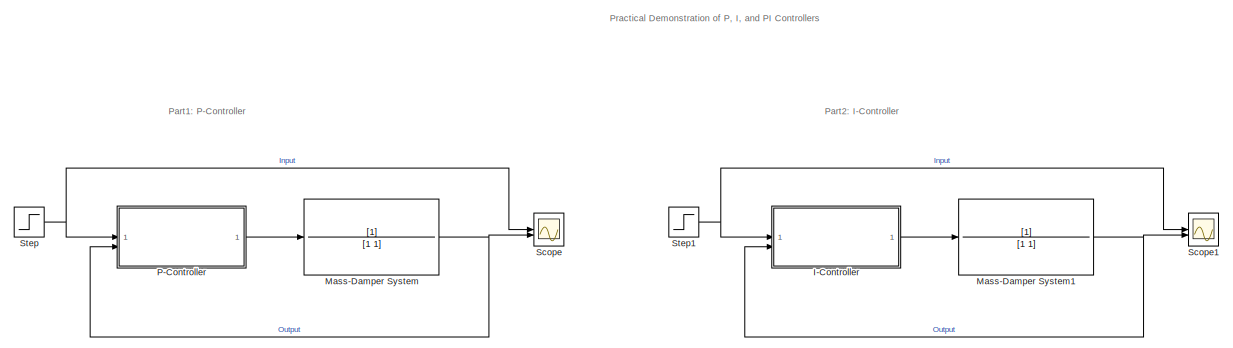
[diagram: root canvas - part 1/2, center side, full height]
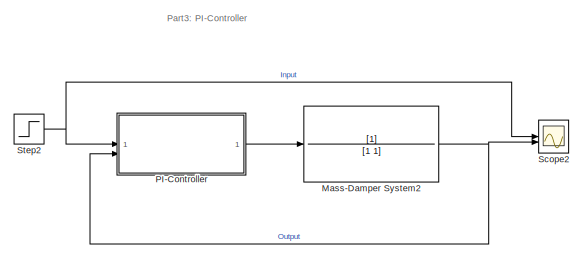
[diagram: root canvas - part 2/2, middle right region]
MODEL slx_b4d3daf89ff5
KIND model
CONFIG AbsTol = auto
CONFIG EnableMultiTasking = off
CONFIG FixedStep = auto
CONFIG MaxStep = auto
CONFIG MinStep = auto
CONFIG RelTol = 1e-3
CONFIG SampleTimeConstraint = Unconstrained
CONFIG SolverName = VariableStepAuto
CONFIG StartTime = 0.0
CONFIG StopTime = 20
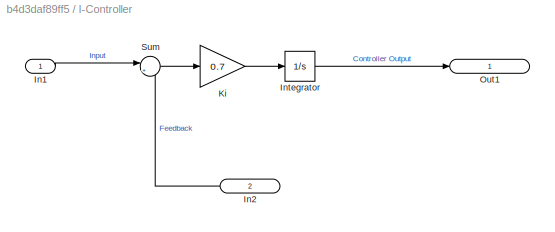
BLOCK [SubSystem] I-Controller
BLOCK [Inport] I-Controller/In1
  IconDisplay = Signal name
BLOCK [Inport] I-Controller/In2
  IconDisplay = Signal name
  Port = 2
BLOCK [Integrator] I-Controller/Integrator
BLOCK [Gain] I-Controller/Ki
  Gain = 0.7
BLOCK [Outport] I-Controller/Out1
  IconDisplay = Signal name
BLOCK [Sum] I-Controller/Sum
  Inputs = |+-
BLOCK [TransferFcn] Mass-Damper System
BLOCK [TransferFcn] Mass-Damper System1
BLOCK [TransferFcn] Mass-Damper System2
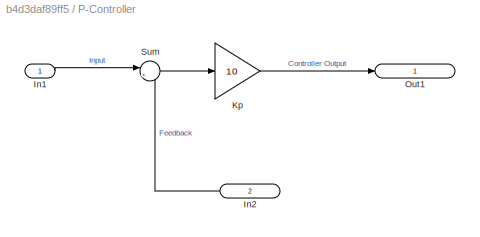
BLOCK [SubSystem] P-Controller
BLOCK [Inport] P-Controller/In1
  IconDisplay = Signal name
BLOCK [Inport] P-Controller/In2
  IconDisplay = Signal name
  Port = 2
BLOCK [Gain] P-Controller/Kp
  Gain = 10
BLOCK [Outport] P-Controller/Out1
  IconDisplay = Signal name
BLOCK [Sum] P-Controller/Sum
  Inputs = |+-
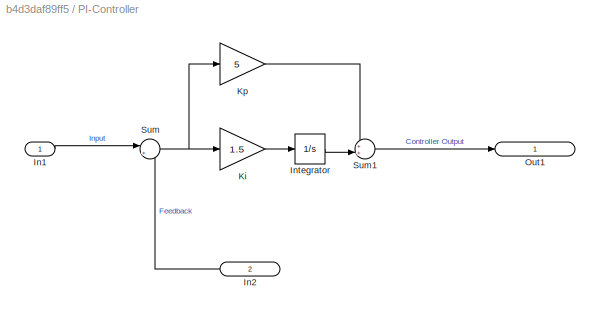
BLOCK [SubSystem] PI-Controller
BLOCK [Inport] PI-Controller/In1
  IconDisplay = Signal name
BLOCK [Inport] PI-Controller/In2
  IconDisplay = Signal name
  Port = 2
BLOCK [Integrator] PI-Controller/Integrator
BLOCK [Gain] PI-Controller/Ki
  Gain = 1.5
BLOCK [Gain] PI-Controller/Kp
  Gain = 5
BLOCK [Outport] PI-Controller/Out1
  IconDisplay = Signal name
BLOCK [Sum] PI-Controller/Sum
  Inputs = |+-
BLOCK [Sum] PI-Controller/Sum1
  Inputs = ++|
BLOCK [Scope] Scope
  Floating = off
  NumInputPorts = 2
  ScopeSpecificationString = Simulink.scopes.TimeScopeBlockCfg('CurrentConfiguration', extmgr.ConfigurationSet(extmgr.Configuration('Core','General UI',true),extmgr.Configuration('Core','Source UI',true),extmgr.Configuration('Sources','WiredSimulink',true),extmgr.Configuration('Visuals','Time Domain',true,'SerializedDisplays',{struct('MinYLimReal','-0.15415','MaxYLimReal','1.38739','YLabelReal','','MinYLimMag','0.00000','MaxY...<+1393ch>
BLOCK [Scope] Scope1
  Floating = off
  NumInputPorts = 2
  ScopeSpecificationString = Simulink.scopes.TimeScopeBlockCfg('CurrentConfiguration', extmgr.ConfigurationSet(extmgr.Configuration('Core','General UI',true),extmgr.Configuration('Core','Source UI',true),extmgr.Configuration('Sources','WiredSimulink',true,'DataLoggingVariableName','ScopeData1'),extmgr.Configuration('Visuals','Time Domain',true,'SerializedDisplays',{struct('MinYLimReal','-0.17301','MaxYLimReal','1.55707','YLab...<+1431ch>
BLOCK [Scope] Scope2
  Floating = off
  NumInputPorts = 2
  ScopeSpecificationString = Simulink.scopes.TimeScopeBlockCfg('CurrentConfiguration', extmgr.ConfigurationSet(extmgr.Configuration('Core','General UI',true),extmgr.Configuration('Core','Source UI',true),extmgr.Configuration('Sources','WiredSimulink',true,'DataLoggingVariableName','ScopeData2'),extmgr.Configuration('Visuals','Time Domain',true,'SerializedDisplays',{struct('MinYLimReal','-0.14863','MaxYLimReal','1.33766','YLab...<+1457ch>
BLOCK [Step] Step
  SampleTime = 0
BLOCK [Step] Step1
  SampleTime = 0
BLOCK [Step] Step2
  SampleTime = 0
ANNOTATION (root): Part2: I-Controller
ANNOTATION (root): Part3: PI-Controller
ANNOTATION (root): Practical Demonstration of P, I, and PI Controllers
ANNOTATION (root): Part1: P-Controller
LINE I-Controller/In1:1 -> I-Controller/Sum:1
LINE I-Controller/In2:1 -> I-Controller/Sum:2
LINE I-Controller/Integrator:1 -> I-Controller/Out1:1
LINE I-Controller/Ki:1 -> I-Controller/Integrator:1
LINE I-Controller/Sum:1 -> I-Controller/Ki:1
LINE I-Controller:1 -> Mass-Damper System1:1
NET Mass-Damper System1:1 -> I-Controller:2, Scope1:2
NET Mass-Damper System2:1 -> PI-Controller:2, Scope2:2
NET Mass-Damper System:1 -> P-Controller:2, Scope:2
LINE P-Controller/In1:1 -> P-Controller/Sum:1
LINE P-Controller/In2:1 -> P-Controller/Sum:2
LINE P-Controller/Kp:1 -> P-Controller/Out1:1
LINE P-Controller/Sum:1 -> P-Controller/Kp:1
LINE P-Controller:1 -> Mass-Damper System:1
LINE PI-Controller/In1:1 -> PI-Controller/Sum:1
LINE PI-Controller/In2:1 -> PI-Controller/Sum:2
LINE PI-Controller/Integrator:1 -> PI-Controller/Sum1:2
LINE PI-Controller/Ki:1 -> PI-Controller/Integrator:1
LINE PI-Controller/Kp:1 -> PI-Controller/Sum1:1
LINE PI-Controller/Sum1:1 -> PI-Controller/Out1:1
NET PI-Controller/Sum:1 -> PI-Controller/Ki:1, PI-Controller/Kp:1
LINE PI-Controller:1 -> Mass-Damper System2:1
NET Step1:1 -> I-Controller:1, Scope1:1
NET Step2:1 -> PI-Controller:1, Scope2:1
NET Step:1 -> P-Controller:1, Scope:1
note: NET lines group one-source signal fan-out (src -> all destinations, sorted); 1:1 wires keep LINE
